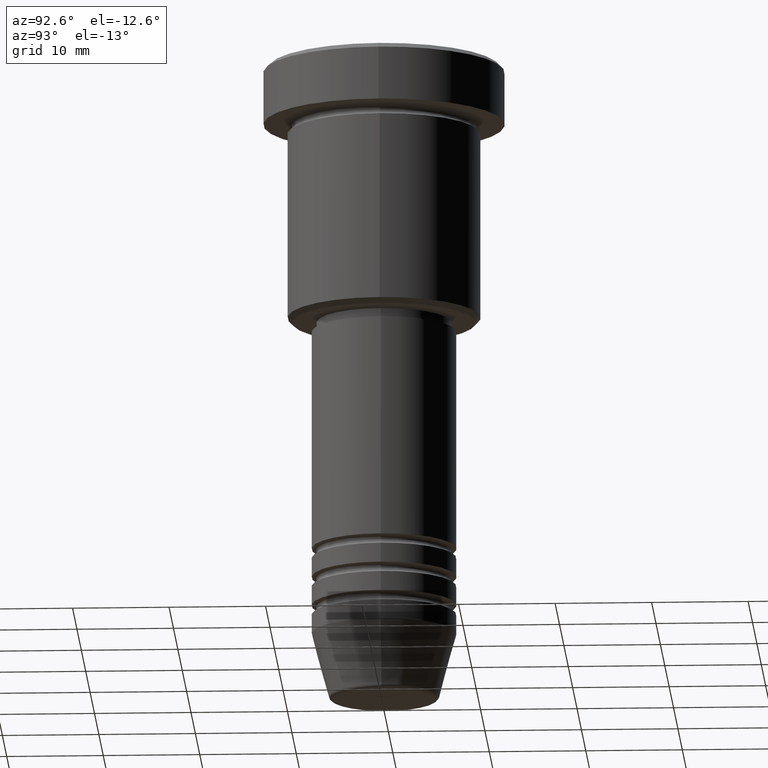
[diagram: clean part render]
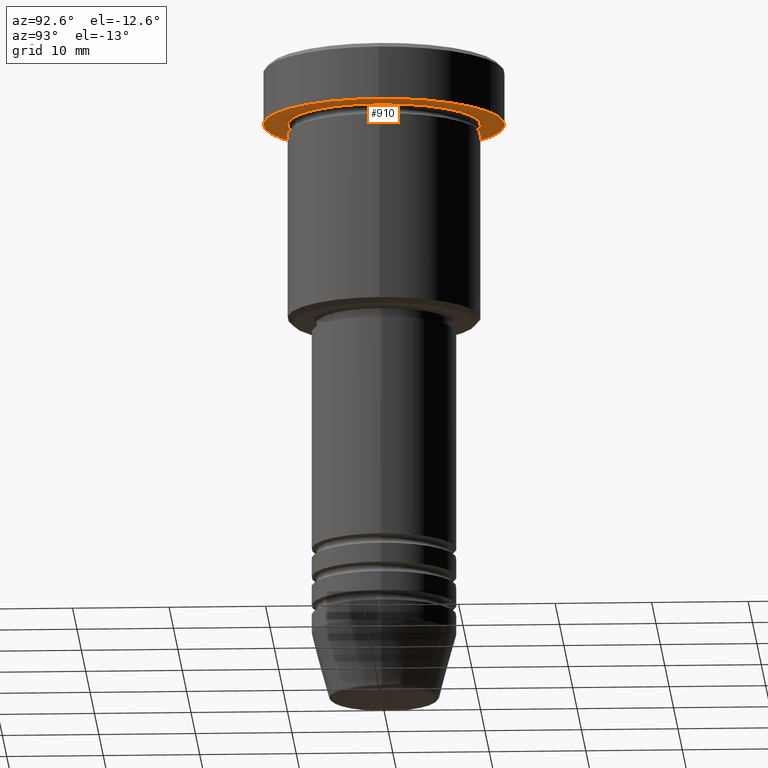
[diagram: same view with one face highlighted and labeled with its STEP entity id]
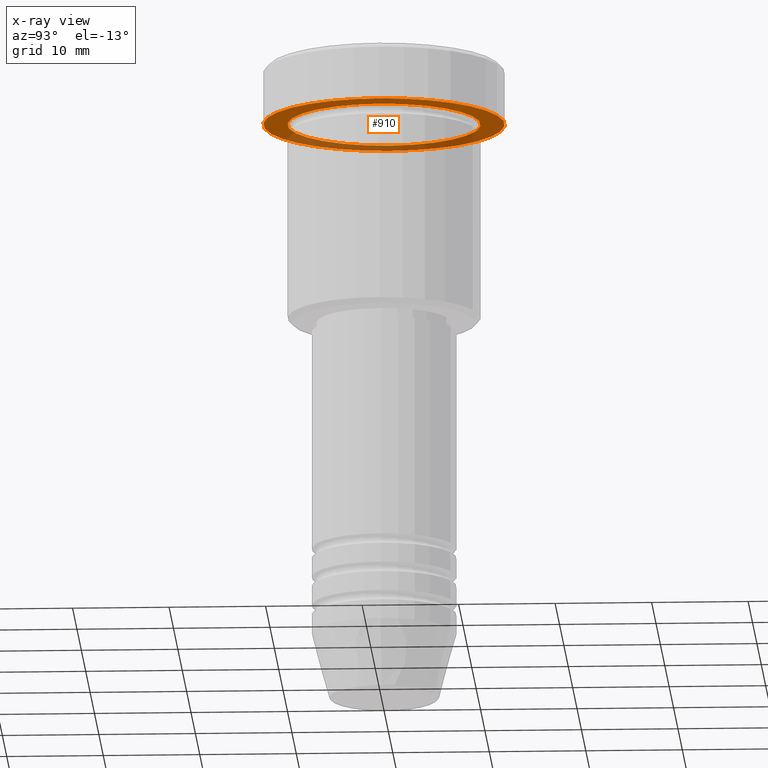
[diagram: x-ray of the same camera — body ghosted, the highlighted face saturated]
A machine part, auxiliary view. The second image highlights one B-rep face of the part: STEP entity #910.
The next image is the same camera in x-ray: the body ghosted, the highlighted face saturated — about 33% of this face is hidden behind the body in this view.
In plain terms, the highlighted planar face has unit normal (0, 0, -1).
Its self-contained STEP definition (entity closure, byte-faithful):
#2 = EDGE_LOOP ( 'NONE', ( #124, #344 ) ) ;
#75 = DIRECTION ( 'NONE',  ( -1.000000000000000000, 0.000000000000000000, -0.000000000000000000 ) ) ;
#91 = CARTESIAN_POINT ( 'NONE',  ( 10.00000000000000000, 1.224646799147353256E-15, -5.999999999999996447 ) ) ;
#105 = PLANE ( 'NONE',  #131 ) ;
#124 = ORIENTED_EDGE ( 'NONE', *, *, #172, .F. ) ;
#131 = AXIS2_PLACEMENT_3D ( 'NONE', #467, #789, #75 ) ;
#151 = DIRECTION ( 'NONE',  ( -0.000000000000000000, -0.000000000000000000, 1.000000000000000000 ) ) ;
#163 = ORIENTED_EDGE ( 'NONE', *, *, #939, .T. ) ;
#172 = EDGE_CURVE ( 'NONE', #881, #275, #524, .T. ) ;
#225 = CARTESIAN_POINT ( 'NONE',  ( 0.000000000000000000, 0.000000000000000000, -5.999999999999996447 ) ) ;
#250 = DIRECTION ( 'NONE',  ( -0.000000000000000000, -0.000000000000000000, 1.000000000000000000 ) ) ;
#262 = CARTESIAN_POINT ( 'NONE',  ( 12.50000000000000000, 0.000000000000000000, -5.999999999999996447 ) ) ;
#275 = VERTEX_POINT ( 'NONE', #829 ) ;
#286 = FACE_OUTER_BOUND ( 'NONE', #2, .T. ) ;
#318 = CIRCLE ( 'NONE', #997, 10.00000000000000000 ) ;
#344 = ORIENTED_EDGE ( 'NONE', *, *, #757, .F. ) ;
#391 = AXIS2_PLACEMENT_3D ( 'NONE', #593, #250, #1153 ) ;
#456 = DIRECTION ( 'NONE',  ( 1.000000000000000000, 0.000000000000000000, 0.000000000000000000 ) ) ;
#467 = CARTESIAN_POINT ( 'NONE',  ( 0.000000000000000000, 12.50000000000000000, -5.999999999999996447 ) ) ;
#524 = CIRCLE ( 'NONE', #995, 12.50000000000000000 ) ;
#588 = CIRCLE ( 'NONE', #748, 12.50000000000000000 ) ;
#593 = CARTESIAN_POINT ( 'NONE',  ( 0.000000000000000000, 0.000000000000000000, -5.999999999999996447 ) ) ;
#604 = EDGE_LOOP ( 'NONE', ( #163, #948 ) ) ;
#718 = DIRECTION ( 'NONE',  ( -0.000000000000000000, -0.000000000000000000, 1.000000000000000000 ) ) ;
#719 = DIRECTION ( 'NONE',  ( -1.000000000000000000, 0.000000000000000000, 0.000000000000000000 ) ) ;
#748 = AXIS2_PLACEMENT_3D ( 'NONE', #1169, #718, #456 ) ;
#755 = FACE_BOUND ( 'NONE', #604, .T. ) ;
#757 = EDGE_CURVE ( 'NONE', #275, #881, #588, .T. ) ;
#777 = VERTEX_POINT ( 'NONE', #91 ) ;
#789 = DIRECTION ( 'NONE',  ( 0.000000000000000000, 0.000000000000000000, -1.000000000000000000 ) ) ;
#796 = DIRECTION ( 'NONE',  ( 1.000000000000000000, 0.000000000000000000, 0.000000000000000000 ) ) ;
#829 = CARTESIAN_POINT ( 'NONE',  ( -12.50000000000000000, 1.530808498934191521E-15, -5.999999999999996447 ) ) ;
#881 = VERTEX_POINT ( 'NONE', #262 ) ;
#885 = DIRECTION ( 'NONE',  ( -0.000000000000000000, -0.000000000000000000, 1.000000000000000000 ) ) ;
#910 = ADVANCED_FACE ( 'NONE', ( #755, #286 ), #105, .T. ) ;
#939 = EDGE_CURVE ( 'NONE', #1168, #777, #318, .T. ) ;
#944 = EDGE_CURVE ( 'NONE', #777, #1168, #1152, .T. ) ;
#948 = ORIENTED_EDGE ( 'NONE', *, *, #944, .T. ) ;
#990 = CARTESIAN_POINT ( 'NONE',  ( -10.00000000000000000, 0.000000000000000000, -5.999999999999996447 ) ) ;
#995 = AXIS2_PLACEMENT_3D ( 'NONE', #1061, #885, #796 ) ;
#997 = AXIS2_PLACEMENT_3D ( 'NONE', #225, #151, #719 ) ;
#1061 = CARTESIAN_POINT ( 'NONE',  ( 0.000000000000000000, 0.000000000000000000, -5.999999999999996447 ) ) ;
#1152 = CIRCLE ( 'NONE', #391, 10.00000000000000000 ) ;
#1153 = DIRECTION ( 'NONE',  ( -1.000000000000000000, 0.000000000000000000, 0.000000000000000000 ) ) ;
#1168 = VERTEX_POINT ( 'NONE', #990 ) ;
#1169 = CARTESIAN_POINT ( 'NONE',  ( 0.000000000000000000, 0.000000000000000000, -5.999999999999996447 ) ) ;